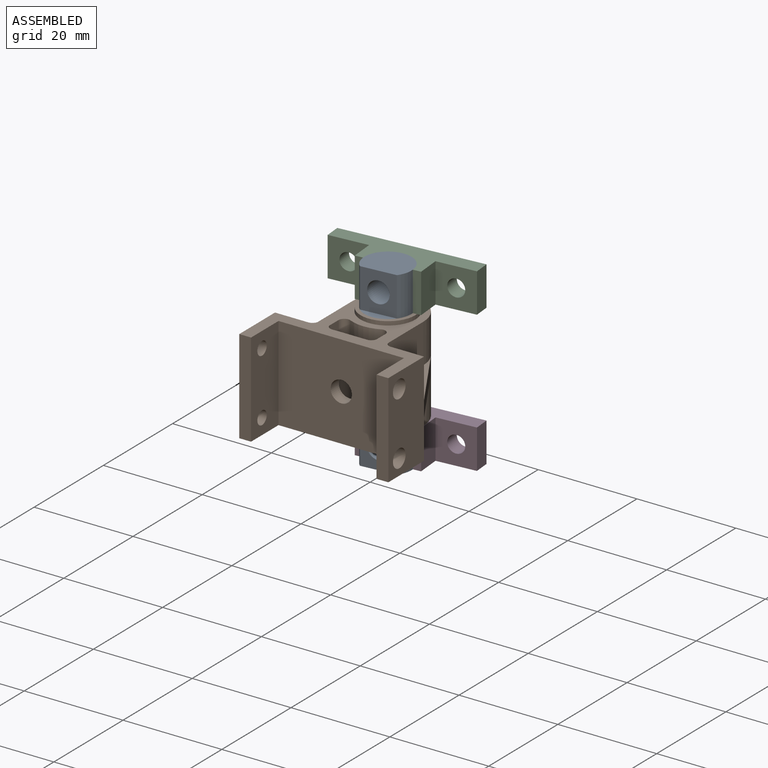
[diagram: assembled view]
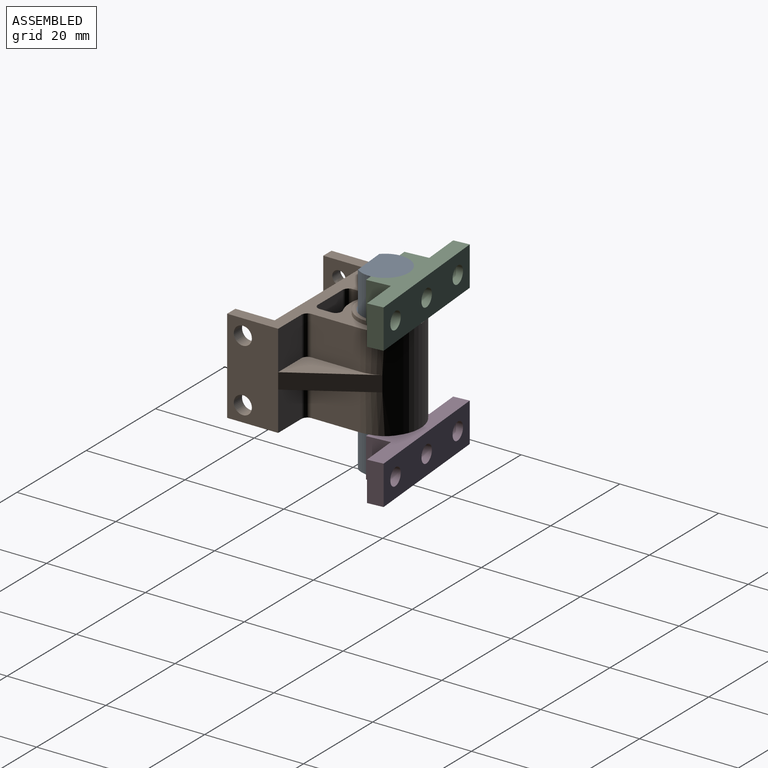
[diagram: assembled view, second angle]
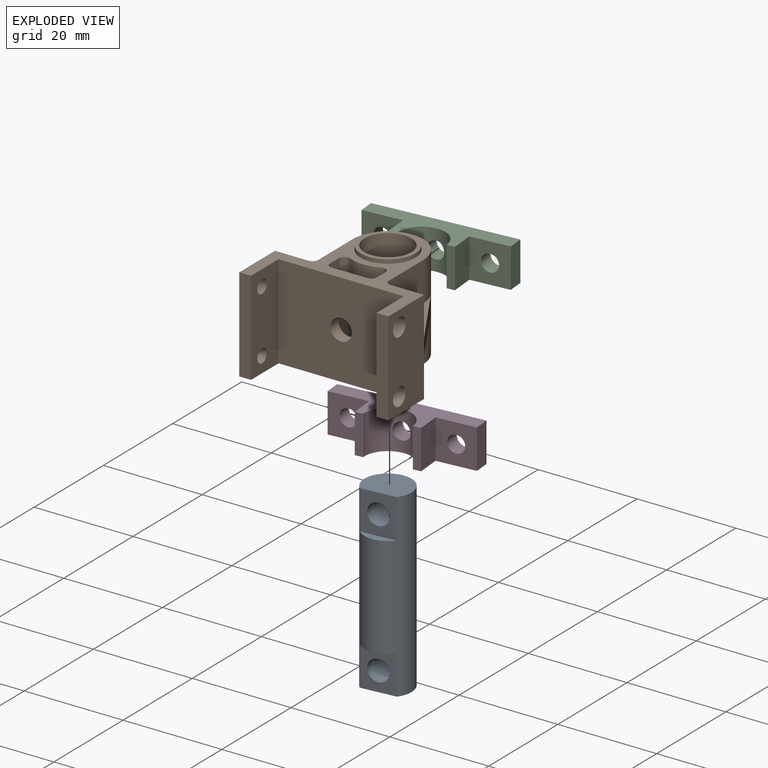
[diagram: exploded view]
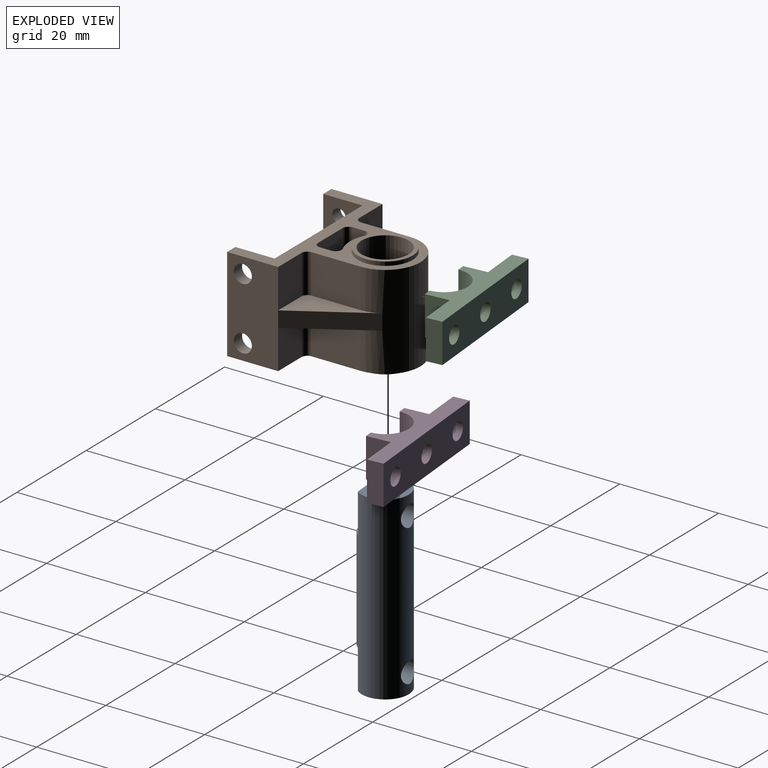
[diagram: exploded view, second angle]
ASSEMBLY  parts=4 mates=6
PART A: 9 faces, bbox 9.5x9.5x36.5 mm
  f0: cylinder r=4.76mm len=36.51mm, axis (0,0,-1), area 935.5mm2, adj f1,f2,f3,f4,f5,f6,f7,f8
  f1: plane 9.53x7.94mm, normal (0,0,-1), area 63.4mm2, adj f0,f6
  f2: plane 9.53x7.94mm, normal (0,0,1), area 63.4mm2, adj f0,f4
  f3: plane 7.1x1.59mm, normal (0,0,1), area 7.8mm2, adj f0,f4
  f4: plane 7.94x7.1mm, normal (0,-1,0), area 41.8mm2, adj f0,f2,f3,f8
  f5: plane 7.1x1.59mm, normal (0,0,-1), area 7.8mm2, adj f0,f6
  f6: plane 7.94x7.1mm, normal (0,-1,0), area 41.8mm2, adj f0,f1,f5,f7
  f7: cylinder r=2.15mm len=7.94mm, axis (0,-1,0), area 103.9mm2, adj f0,f6
  f8: cylinder r=2.15mm len=7.94mm, axis (0,-1,0), area 103.9mm2, adj f0,f4
PART B: 47 faces, bbox 30.2x28.6x20.6 mm
  f0: cylinder r=1.73mm len=3.45mm, axis (0,-1,0), area 26.4mm2, adj f1,f35
  f1: cylinder r=4.76mm len=20.64mm, axis (0,0,-1), area 608mm2, adj f0,f30,f32
  f2: plane 9.92x7.94mm, normal (1,0,0), area 78.8mm2, adj f4,f18,f29,f46
  f3: plane 7.94x6.75mm, normal (0,1,0), area 53.6mm2, adj f16,f18,f29,f46
  f4: cylinder r=7.14mm len=19.05mm, axis (0,0,-1), area 402.8mm2, adj f2,f5,f7,f8,f18,f19,f24,f25
  f5: plane 9.92x7.94mm, normal (-1,0,0), area 78.8mm2, adj f4,f18,f26,f45
  f6: plane 7.94x6.75mm, normal (0,1,0), area 53.6mm2, adj f10,f18,f26,f45
  f7: plane 9.92x7.94mm, normal (1,0,0), area 78.8mm2, adj f4,f19,f28,f43
  f8: plane 9.92x7.94mm, normal (-1,0,0), area 78.8mm2, adj f4,f19,f25,f44
  f9: plane 7.94x6.75mm, normal (0,1,0), area 53.6mm2, adj f10,f19,f25,f44
  f10: plane 19.05x10.32mm, normal (-1,0,0), area 185.1mm2, adj f6,f9,f11,f18,f19,f22,f23,f24
  f11: plane 19.05x2.38mm, normal (0,-1,0), area 45.4mm2, adj f10,f12,f18,f19
  f12: plane 19.05x7.94mm, normal (1,0,0), area 139.7mm2, adj f11,f13,f18,f19,f22,f23
  f13: plane 25.4x19.05mm, normal (0,-1,0), area 469.3mm2, adj f12,f14,f18,f19,f38
  f14: plane 19.05x7.94mm, normal (-1,0,0), area 130.2mm2, adj f13,f15,f18,f19,f20,f21
  f15: plane 19.05x2.38mm, normal (0,-1,0), area 45.4mm2, adj f14,f16,f18,f19
  f16: plane 19.05x10.32mm, normal (1,0,0), area 175.6mm2, adj f3,f15,f17,f18,f19,f20,f21,f27
  f17: plane 7.94x6.75mm, normal (0,1,0), area 53.6mm2, adj f16,f19,f28,f43
  f18: plane 30.16x28.58mm, normal (0,0,1), area 211.5mm2, adj f2,f3,f4,f5,f6,f10,f11,f12
  f19: plane 30.16x28.58mm, normal (0,0,-1), area 211.5mm2, adj f4,f7,f8,f9,f10,f11,f12,f13
  f20: cylinder r=1.83mm len=3.66mm, axis (1,0,0), area 27.4mm2, adj f14,f16
  f21: cylinder r=1.83mm len=3.66mm, axis (1,0,0), area 27.4mm2, adj f14,f16
  f22: cylinder r=1.35mm len=2.71mm, axis (-1,0,0), area 20.2mm2, adj f10,f12
  f23: cylinder r=1.35mm len=2.71mm, axis (-1,0,0), area 20.2mm2, adj f10,f12
  f24: plane 14.81x8.97mm, normal (-0.86,0.52,0), area 55mm2, adj f4,f10,f25,f26
  f25: plane 14.81x8.97mm, normal (0,0,-1), area 52.1mm2, adj f4,f8,f9,f24,f44
  f26: plane 14.81x8.97mm, normal (0,0,1), area 52.1mm2, adj f4,f5,f6,f24,f45
  f27: plane 14.81x8.97mm, normal (0.86,0.52,0), area 55mm2, adj f4,f16,f28,f29
  f28: plane 14.81x8.97mm, normal (0,0,-1), area 52.1mm2, adj f4,f7,f17,f27,f43
  f29: plane 14.81x8.97mm, normal (0,0,1), area 52.1mm2, adj f2,f3,f4,f27,f46
  f30: plane 11.11x11.11mm, normal (0,0,-1), area 25.7mm2, adj f1,f31
  f31: cylinder r=5.56mm len=11.11mm, axis (0,0,1), area 27.7mm2, adj f19,f30
  f32: plane 11.11x11.11mm, normal (0,0,1), area 25.7mm2, adj f1,f33
  f33: cylinder r=5.56mm len=11.11mm, axis (0,0,1), area 27.7mm2, adj f18,f32
  f34: plane 19.05x7.14mm, normal (0,1,0), area 121.5mm2, adj f18,f19,f38,f39,f40
  f35: cylinder r=7.14mm len=19.05mm, axis (0,0,1), area 111.1mm2, adj f0,f18,f19,f41,f42
  f36: plane 19.05x2.39mm, normal (1,0,0), area 45.6mm2, adj f18,f19,f39,f41
  f37: plane 19.05x2.39mm, normal (-1,0,0), area 45.6mm2, adj f18,f19,f40,f42
  f38: cylinder r=2.15mm len=4.31mm, axis (0,-1,0), area 32.2mm2, adj f13,f34
  f39: cylinder r=1.19mm len=19.05mm, axis (0,0,1), area 35.6mm2, adj f18,f19,f34,f36
  f40: cylinder r=1.19mm len=19.05mm, axis (0,0,-1), area 35.6mm2, adj f18,f19,f34,f37
  f41: cylinder r=1.19mm len=19.05mm, axis (0,0,1), area 45.7mm2, adj f18,f19,f35,f36
  f42: cylinder r=1.19mm len=19.05mm, axis (0,0,1), area 45.7mm2, adj f18,f19,f35,f37
  f43: cylinder r=1.19mm len=7.94mm, axis (0,0,1), area 14.8mm2, adj f7,f17,f19,f28
  f44: cylinder r=1.19mm len=7.94mm, axis (0,0,1), area 14.8mm2, adj f8,f9,f19,f25
  f45: cylinder r=1.19mm len=7.94mm, axis (0,0,1), area 14.8mm2, adj f5,f6,f18,f26
  f46: cylinder r=1.19mm len=7.94mm, axis (0,0,1), area 14.8mm2, adj f2,f3,f18,f29
PART C: 15 faces, bbox 28.6x7.9x7.9 mm
  f0: cylinder r=4.76mm len=9.53mm, axis (0,0,-1), area 109.2mm2, adj f1,f9,f10,f11,f14
  f1: plane 7.94x1.59mm, normal (0,-1,0), area 12.6mm2, adj f0,f2,f10,f11
  f2: plane 7.94x4.76mm, normal (1,0,0), area 37.8mm2, adj f1,f3,f10,f11
  f3: plane 7.94x7.94mm, normal (0,-1,0), area 53.6mm2, adj f2,f4,f10,f11,f13
  f4: plane 7.94x3.18mm, normal (1,0,0), area 25.2mm2, adj f3,f5,f10,f11
  f5: plane 28.58x7.94mm, normal (0,1,0), area 198.7mm2, adj f4,f6,f10,f11,f12,f13,f14
  f6: plane 7.94x3.18mm, normal (-1,0,0), area 25.2mm2, adj f5,f7,f10,f11
  f7: plane 7.94x7.94mm, normal (0,-1,0), area 53.6mm2, adj f6,f8,f10,f11,f12
  f8: plane 7.94x4.76mm, normal (-1,0,0), area 37.8mm2, adj f7,f9,f10,f11
  f9: plane 7.94x1.59mm, normal (0,-1,0), area 12.6mm2, adj f0,f8,f10,f11
  f10: plane 28.58x7.94mm, normal (0,0,1), area 115.6mm2, adj f0,f1,f2,f3,f4,f5,f6,f7
  f11: plane 28.58x7.94mm, normal (0,0,-1), area 115.6mm2, adj f0,f1,f2,f3,f4,f5,f6,f7
  f12: cylinder r=1.73mm len=3.45mm, axis (0,1,0), area 34.5mm2, adj f5,f7
  f13: cylinder r=1.73mm len=3.45mm, axis (0,1,0), area 34.5mm2, adj f3,f5
  f14: cylinder r=1.73mm len=3.5mm, axis (0,1,0), area 36.2mm2, adj f0,f5
PART D: same geometry as C
PLACE A rot(axis=(0,0,1),5deg) t=(9.15,-5.05,-3.44)mm
PLACE B t=(9.15,-5.05,5.29)mm
PLACE C rot(axis=(0,0,1),5deg) t=(4.41,-5.47,25.13)mm
PLACE D rot(axis=(0,0,1),5deg) t=(4.41,-5.47,-3.44)mm
MATE cylindrical D.f14 <-> A.f7  axis (-0.09,1,0) through (8.62,1.1,0.53)mm
MATE cylindrical B.f1 <-> A.f0  axis (0,0,-1) through (9.15,-5.05,4.5)mm
MATE cylindrical A.f0 <-> D.f0  axis (0,0,-1) through (9.15,-5.05,14.81)mm
MATE cylindrical A.f0 <-> C.f0  axis (0,0,-1) through (9.15,-5.05,14.81)mm
MATE cylindrical C.f14 <-> A.f8  axis (-0.09,1,0) through (8.62,1.1,29.1)mm
MATE planar B.f1 <-> D.f10  axis (0,0,-1) through (9.15,-5.05,4.5)mm
